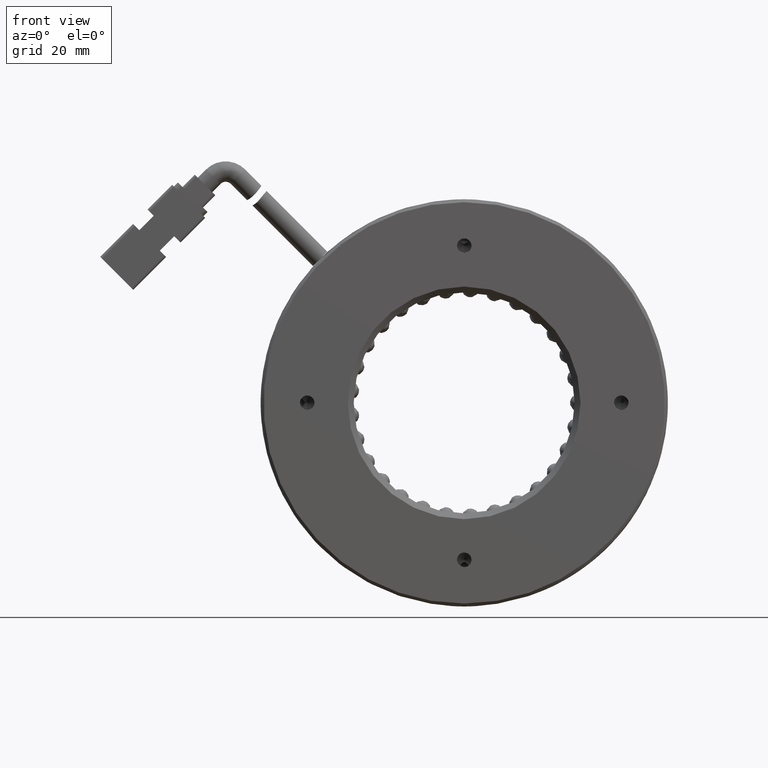
[diagram: clean part render]
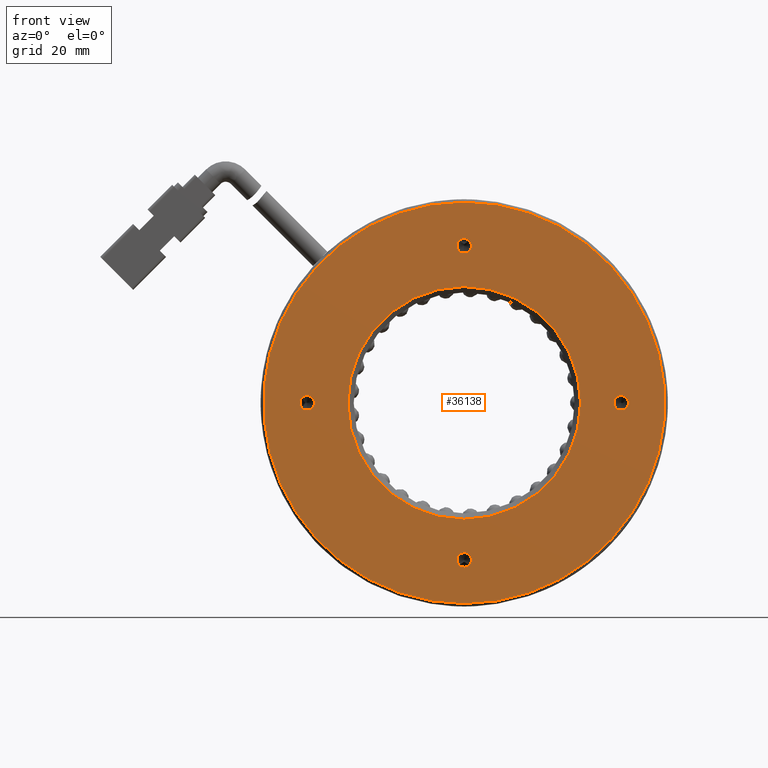
[diagram: same view with one face highlighted and labeled with its STEP entity id]
A machine part, front view. The second image highlights one B-rep face of the part: STEP entity #36138.
In plain terms, the highlighted planar face has unit normal (0, 1, 0).
Its self-contained STEP definition (entity closure, byte-faithful):
#1585 = FACE_BOUND ( 'NONE', #33518, .T. ) ;
#1791 = CARTESIAN_POINT ( 'NONE',  ( 24.28392897960850400, -3.692728664891308000, 2.831659657038609400E-013 ) ) ;
#2725 = DIRECTION ( 'NONE',  ( 0.0000000000000000000, 0.0000000000000000000, -1.000000000000000000 ) ) ;
#3239 = AXIS2_PLACEMENT_3D ( 'NONE', #74076, #33890, #80837 ) ;
#3956 = PLANE ( 'NONE',  #44901 ) ;
#4741 = ORIENTED_EDGE ( 'NONE', *, *, #74201, .F. ) ;
#5142 = CARTESIAN_POINT ( 'NONE',  ( -29.71607102039149600, -3.692728664891308000, 1.249999999999903200 ) ) ;
#5444 = CARTESIAN_POINT ( 'NONE',  ( -2.716071020391492000, -3.692728664891308000, 20.00000000000001800 ) ) ;
#5632 = DIRECTION ( 'NONE',  ( 0.0000000000000000000, 0.0000000000000000000, -1.000000000000000000 ) ) ;
#6255 = AXIS2_PLACEMENT_3D ( 'NONE', #1791, #48657, #8531 ) ;
#7412 = AXIS2_PLACEMENT_3D ( 'NONE', #70022, #29921, #76805 ) ;
#7472 = DIRECTION ( 'NONE',  ( 0.0000000000000000000, -1.000000000000000000, 0.0000000000000000000 ) ) ;
#8191 = CARTESIAN_POINT ( 'NONE',  ( -2.716071020391305400, -3.692728664891308000, -27.00000000000000000 ) ) ;
#8210 = VERTEX_POINT ( 'NONE', #59803 ) ;
#8531 = DIRECTION ( 'NONE',  ( 0.0000000000000000000, 0.0000000000000000000, -1.000000000000000000 ) ) ;
#8547 = ORIENTED_EDGE ( 'NONE', *, *, #43337, .F. ) ;
#12054 = ORIENTED_EDGE ( 'NONE', *, *, #24822, .F. ) ;
#12351 = VERTEX_POINT ( 'NONE', #27800 ) ;
#13065 = VERTEX_POINT ( 'NONE', #86406 ) ;
#14567 = EDGE_CURVE ( 'NONE', #62862, #44246, #34968, .T. ) ;
#14932 = DIRECTION ( 'NONE',  ( 0.0000000000000000000, 0.0000000000000000000, -1.000000000000000000 ) ) ;
#15688 = CARTESIAN_POINT ( 'NONE',  ( -2.716071020391494600, -3.692728664891308000, 0.0000000000000000000 ) ) ;
#15927 = DIRECTION ( 'NONE',  ( -0.0000000000000000000, -1.000000000000000000, -0.0000000000000000000 ) ) ;
#15971 = EDGE_LOOP ( 'NONE', ( #19111, #58392 ) ) ;
#16369 = CIRCLE ( 'NONE', #3239, 34.50000000000002800 ) ;
#16411 = AXIS2_PLACEMENT_3D ( 'NONE', #38714, #85568, #45495 ) ;
#17311 = ORIENTED_EDGE ( 'NONE', *, *, #58360, .F. ) ;
#19096 = ORIENTED_EDGE ( 'NONE', *, *, #64002, .F. ) ;
#19111 = ORIENTED_EDGE ( 'NONE', *, *, #30229, .F. ) ;
#21120 = EDGE_CURVE ( 'NONE', #79274, #49294, #67343, .T. ) ;
#21286 = CIRCLE ( 'NONE', #6255, 1.249999999999997600 ) ;
#21293 = EDGE_LOOP ( 'NONE', ( #74472, #67763 ) ) ;
#21809 = DIRECTION ( 'NONE',  ( 0.0000000000000000000, -1.000000000000000000, 0.0000000000000000000 ) ) ;
#22450 = DIRECTION ( 'NONE',  ( 0.0000000000000000000, 0.0000000000000000000, 1.000000000000000000 ) ) ;
#22491 = VERTEX_POINT ( 'NONE', #53224 ) ;
#24216 = EDGE_CURVE ( 'NONE', #69198, #45316, #67429, .T. ) ;
#24822 = EDGE_CURVE ( 'NONE', #22491, #57317, #40749, .T. ) ;
#25708 = FACE_BOUND ( 'NONE', #66267, .T. ) ;
#27111 = CIRCLE ( 'NONE', #43949, 1.249999999999997600 ) ;
#27675 = CARTESIAN_POINT ( 'NONE',  ( -2.716071020391495100, -3.692728664891308000, 27.00000000000000000 ) ) ;
#27800 = CARTESIAN_POINT ( 'NONE',  ( -2.716071020391490200, -3.692728664891308000, -34.50000000000002800 ) ) ;
#28617 = CARTESIAN_POINT ( 'NONE',  ( 24.28392897960850400, -3.692728664891308000, -1.249999999999714500 ) ) ;
#29921 = DIRECTION ( 'NONE',  ( -0.0000000000000000000, -1.000000000000000000, -0.0000000000000000000 ) ) ;
#30229 = EDGE_CURVE ( 'NONE', #45316, #69198, #27111, .T. ) ;
#33518 = EDGE_LOOP ( 'NONE', ( #17311, #71013 ) ) ;
#33890 = DIRECTION ( 'NONE',  ( -0.0000000000000000000, 1.000000000000000000, 0.0000000000000000000 ) ) ;
#34373 = DIRECTION ( 'NONE',  ( 0.0000000000000000000, 0.0000000000000000000, -1.000000000000000000 ) ) ;
#34968 = CIRCLE ( 'NONE', #7412, 1.249999999999997600 ) ;
#35115 = FACE_BOUND ( 'NONE', #21293, .T. ) ;
#36024 = CARTESIAN_POINT ( 'NONE',  ( -29.71607102039149600, -3.692728664891308000, -1.250000000000092100 ) ) ;
#36138 = ADVANCED_FACE ( 'NONE', ( #70761, #79238, #25708, #1585, #52971, #35115 ), #3956, .F. ) ;
#37655 = CARTESIAN_POINT ( 'NONE',  ( -21.71607102039149200, -3.692728664891308000, 0.0000000000000000000 ) ) ;
#38714 = CARTESIAN_POINT ( 'NONE',  ( -2.716071020391495100, -3.692728664891308000, 27.00000000000000000 ) ) ;
#40749 = CIRCLE ( 'NONE', #53967, 1.249999999999997600 ) ;
#42092 = AXIS2_PLACEMENT_3D ( 'NONE', #15688, #62626, #22450 ) ;
#42869 = DIRECTION ( 'NONE',  ( -0.0000000000000000000, -1.000000000000000000, -0.0000000000000000000 ) ) ;
#43337 = EDGE_CURVE ( 'NONE', #13065, #8210, #49854, .T. ) ;
#43949 = AXIS2_PLACEMENT_3D ( 'NONE', #85886, #45814, #5632 ) ;
#44246 = VERTEX_POINT ( 'NONE', #28617 ) ;
#44272 = CARTESIAN_POINT ( 'NONE',  ( -2.716071020391305400, -3.692728664891308000, -25.75000000000000400 ) ) ;
#44460 = DIRECTION ( 'NONE',  ( 0.0000000000000000000, -0.0000000000000000000, 1.000000000000000000 ) ) ;
#44901 = AXIS2_PLACEMENT_3D ( 'NONE', #37655, #84538, #44460 ) ;
#45316 = VERTEX_POINT ( 'NONE', #36024 ) ;
#45457 = EDGE_CURVE ( 'NONE', #12351, #68456, #16369, .T. ) ;
#45495 = DIRECTION ( 'NONE',  ( 0.0000000000000000000, 0.0000000000000000000, -1.000000000000000000 ) ) ;
#45814 = DIRECTION ( 'NONE',  ( -0.0000000000000000000, -1.000000000000000000, -0.0000000000000000000 ) ) ;
#47630 = CARTESIAN_POINT ( 'NONE',  ( -2.716071020391494600, -3.692728664891308000, 0.0000000000000000000 ) ) ;
#48132 = EDGE_CURVE ( 'NONE', #68456, #12351, #56120, .T. ) ;
#48657 = DIRECTION ( 'NONE',  ( -0.0000000000000000000, -1.000000000000000000, -0.0000000000000000000 ) ) ;
#49294 = VERTEX_POINT ( 'NONE', #61801 ) ;
#49854 = CIRCLE ( 'NONE', #16411, 1.249999999999997600 ) ;
#52971 = FACE_OUTER_BOUND ( 'NONE', #77760, .T. ) ;
#53224 = CARTESIAN_POINT ( 'NONE',  ( -2.716071020391305400, -3.692728664891308000, -28.24999999999999600 ) ) ;
#53967 = AXIS2_PLACEMENT_3D ( 'NONE', #8191, #55090, #14932 ) ;
#54369 = DIRECTION ( 'NONE',  ( 0.0000000000000000000, 0.0000000000000000000, -1.000000000000000000 ) ) ;
#55090 = DIRECTION ( 'NONE',  ( -0.0000000000000000000, -1.000000000000000000, -0.0000000000000000000 ) ) ;
#56120 = CIRCLE ( 'NONE', #42092, 34.50000000000002800 ) ;
#56142 = CARTESIAN_POINT ( 'NONE',  ( -29.71607102039149600, -3.692728664891308000, -9.462597340633178500E-014 ) ) ;
#57317 = VERTEX_POINT ( 'NONE', #44272 ) ;
#58360 = EDGE_CURVE ( 'NONE', #44246, #62862, #21286, .T. ) ;
#58392 = ORIENTED_EDGE ( 'NONE', *, *, #24216, .F. ) ;
#59388 = EDGE_CURVE ( 'NONE', #49294, #79274, #70024, .T. ) ;
#59803 = CARTESIAN_POINT ( 'NONE',  ( -2.716071020391495100, -3.692728664891308000, 25.75000000000000400 ) ) ;
#60090 = CARTESIAN_POINT ( 'NONE',  ( -2.716071020391494600, -3.692728664891308000, 34.50000000000002800 ) ) ;
#60558 = AXIS2_PLACEMENT_3D ( 'NONE', #27675, #74539, #34373 ) ;
#61801 = CARTESIAN_POINT ( 'NONE',  ( -2.716071020391494600, -3.692728664891308000, -20.00000000000001800 ) ) ;
#61963 = CARTESIAN_POINT ( 'NONE',  ( -2.716071020391494600, -3.692728664891308000, 0.0000000000000000000 ) ) ;
#62308 = AXIS2_PLACEMENT_3D ( 'NONE', #56142, #15927, #62853 ) ;
#62626 = DIRECTION ( 'NONE',  ( -0.0000000000000000000, 1.000000000000000000, 0.0000000000000000000 ) ) ;
#62853 = DIRECTION ( 'NONE',  ( 0.0000000000000000000, 0.0000000000000000000, -1.000000000000000000 ) ) ;
#62862 = VERTEX_POINT ( 'NONE', #81881 ) ;
#64002 = EDGE_CURVE ( 'NONE', #8210, #13065, #72564, .T. ) ;
#65402 = ORIENTED_EDGE ( 'NONE', *, *, #48132, .F. ) ;
#66267 = EDGE_LOOP ( 'NONE', ( #12054, #4741 ) ) ;
#67343 = CIRCLE ( 'NONE', #82733, 20.00000000000001800 ) ;
#67429 = CIRCLE ( 'NONE', #62308, 1.249999999999997600 ) ;
#67763 = ORIENTED_EDGE ( 'NONE', *, *, #21120, .F. ) ;
#68456 = VERTEX_POINT ( 'NONE', #60090 ) ;
#68675 = DIRECTION ( 'NONE',  ( 0.0000000000000000000, 0.0000000000000000000, -1.000000000000000000 ) ) ;
#69198 = VERTEX_POINT ( 'NONE', #5142 ) ;
#70022 = CARTESIAN_POINT ( 'NONE',  ( 24.28392897960850400, -3.692728664891308000, 2.831659657038609400E-013 ) ) ;
#70024 = CIRCLE ( 'NONE', #81631, 20.00000000000001800 ) ;
#70761 = FACE_BOUND ( 'NONE', #85916, .T. ) ;
#71013 = ORIENTED_EDGE ( 'NONE', *, *, #14567, .F. ) ;
#72564 = CIRCLE ( 'NONE', #60558, 1.249999999999997600 ) ;
#73012 = AXIS2_PLACEMENT_3D ( 'NONE', #83009, #42869, #2725 ) ;
#74076 = CARTESIAN_POINT ( 'NONE',  ( -2.716071020391494600, -3.692728664891308000, 0.0000000000000000000 ) ) ;
#74201 = EDGE_CURVE ( 'NONE', #57317, #22491, #81504, .T. ) ;
#74472 = ORIENTED_EDGE ( 'NONE', *, *, #59388, .F. ) ;
#74539 = DIRECTION ( 'NONE',  ( -0.0000000000000000000, -1.000000000000000000, -0.0000000000000000000 ) ) ;
#76805 = DIRECTION ( 'NONE',  ( 0.0000000000000000000, 0.0000000000000000000, -1.000000000000000000 ) ) ;
#77760 = EDGE_LOOP ( 'NONE', ( #65402, #78583 ) ) ;
#78583 = ORIENTED_EDGE ( 'NONE', *, *, #45457, .F. ) ;
#79238 = FACE_BOUND ( 'NONE', #15971, .T. ) ;
#79274 = VERTEX_POINT ( 'NONE', #5444 ) ;
#80837 = DIRECTION ( 'NONE',  ( 0.0000000000000000000, 0.0000000000000000000, 1.000000000000000000 ) ) ;
#81504 = CIRCLE ( 'NONE', #73012, 1.249999999999997600 ) ;
#81631 = AXIS2_PLACEMENT_3D ( 'NONE', #61963, #21809, #68675 ) ;
#81881 = CARTESIAN_POINT ( 'NONE',  ( 24.28392897960850400, -3.692728664891308000, 1.250000000000280900 ) ) ;
#82733 = AXIS2_PLACEMENT_3D ( 'NONE', #47630, #7472, #54369 ) ;
#83009 = CARTESIAN_POINT ( 'NONE',  ( -2.716071020391305400, -3.692728664891308000, -27.00000000000000000 ) ) ;
#84538 = DIRECTION ( 'NONE',  ( 0.0000000000000000000, 1.000000000000000000, 0.0000000000000000000 ) ) ;
#85568 = DIRECTION ( 'NONE',  ( -0.0000000000000000000, -1.000000000000000000, -0.0000000000000000000 ) ) ;
#85886 = CARTESIAN_POINT ( 'NONE',  ( -29.71607102039149600, -3.692728664891308000, -9.462597340633178500E-014 ) ) ;
#85916 = EDGE_LOOP ( 'NONE', ( #19096, #8547 ) ) ;
#86406 = CARTESIAN_POINT ( 'NONE',  ( -2.716071020391495100, -3.692728664891308000, 28.24999999999999600 ) ) ;